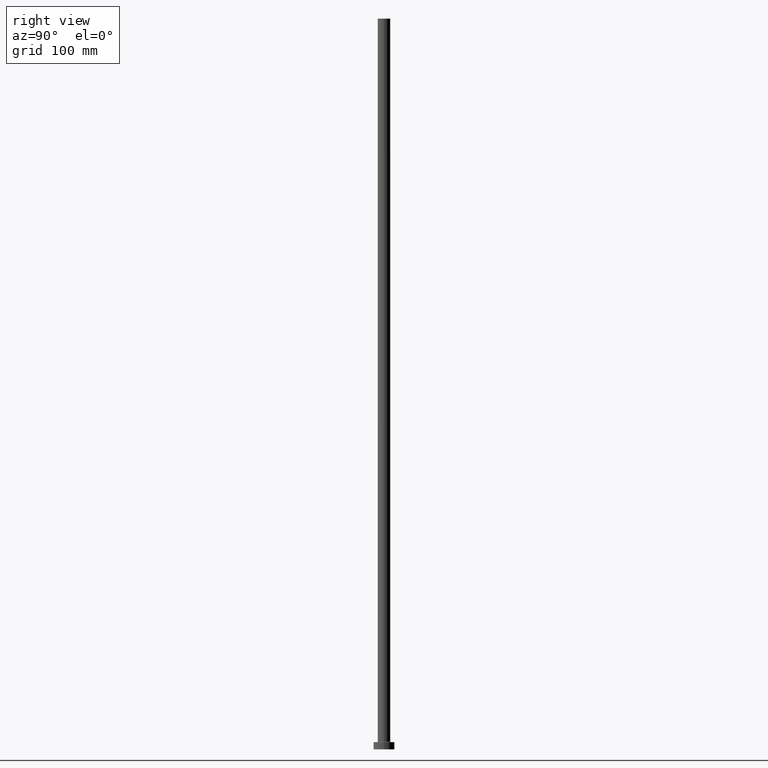
[diagram: clean part render]
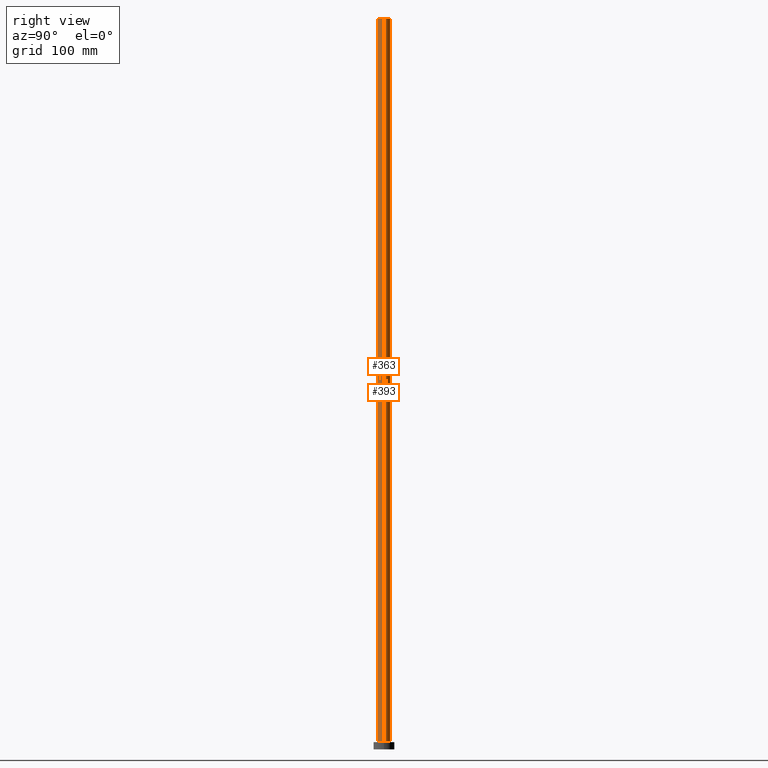
[diagram: same view with one multi-face feature highlighted, each face labeled with its STEP entity id]
A machine part, right view. The highlighted faces form ONE feature: a constant-radius fillet chain: 2 tangent blend faces with common blend radius 6 mm. The faces share edges in the B-rep.
Their STEP definitions:
[1] entity #393 (Cylinder):
#22 = DIRECTION ( 'NONE',  ( -0.000000000000000000, -0.000000000000000000, -1.000000000000000000 ) ) ;
#28 = DIRECTION ( 'NONE',  ( 0.000000000000000000, 0.000000000000000000, 1.000000000000000000 ) ) ;
#30 = EDGE_CURVE ( 'NONE', #407, #35, #395, .T. ) ;
#35 = VERTEX_POINT ( 'NONE', #387 ) ;
#37 = AXIS2_PLACEMENT_3D ( 'NONE', #371, #121, #408 ) ;
#56 = VECTOR ( 'NONE', #71, 1000.000000000000000 ) ;
#68 = ORIENTED_EDGE ( 'NONE', *, *, #440, .T. ) ;
#71 = DIRECTION ( 'NONE',  ( -0.000000000000000000, -0.000000000000000000, -1.000000000000000000 ) ) ;
#89 = ORIENTED_EDGE ( 'NONE', *, *, #191, .F. ) ;
#104 = ORIENTED_EDGE ( 'NONE', *, *, #30, .T. ) ;
#106 = CARTESIAN_POINT ( 'NONE',  ( -6.000000000000000888, 0.000000000000000000, 700.0000000000000000 ) ) ;
#114 = DIRECTION ( 'NONE',  ( 0.000000000000000000, 0.000000000000000000, 1.000000000000000000 ) ) ;
#115 = EDGE_CURVE ( 'NONE', #238, #35, #326, .T. ) ;
#121 = DIRECTION ( 'NONE',  ( -0.000000000000000000, -0.000000000000000000, -1.000000000000000000 ) ) ;
#124 = CARTESIAN_POINT ( 'NONE',  ( 6.000000000000000888, 7.347880794884120722E-16, 7.499999999999951150 ) ) ;
#153 = EDGE_LOOP ( 'NONE', ( #89, #68, #104, #194 ) ) ;
#180 = CIRCLE ( 'NONE', #312, 6.000000000000000888 ) ;
#191 = EDGE_CURVE ( 'NONE', #449, #238, #180, .T. ) ;
#194 = ORIENTED_EDGE ( 'NONE', *, *, #115, .F. ) ;
#199 = DIRECTION ( 'NONE',  ( 1.000000000000000000, 0.000000000000000000, 0.000000000000000000 ) ) ;
#220 = DIRECTION ( 'NONE',  ( 1.000000000000000000, 0.000000000000000000, 0.000000000000000000 ) ) ;
#224 = CYLINDRICAL_SURFACE ( 'NONE', #37, 6.000000000000000888 ) ;
#238 = VERTEX_POINT ( 'NONE', #106 ) ;
#253 = VECTOR ( 'NONE', #22, 1000.000000000000000 ) ;
#263 = FACE_OUTER_BOUND ( 'NONE', #153, .T. ) ;
#272 = CARTESIAN_POINT ( 'NONE',  ( 0.000000000000000000, 0.000000000000000000, 7.499999999999951150 ) ) ;
#285 = AXIS2_PLACEMENT_3D ( 'NONE', #272, #28, #199 ) ;
#309 = LINE ( 'NONE', #316, #253 ) ;
#312 = AXIS2_PLACEMENT_3D ( 'NONE', #437, #114, #220 ) ;
#316 = CARTESIAN_POINT ( 'NONE',  ( 6.000000000000000888, 7.347880794884120722E-16, 700.0000000000000000 ) ) ;
#326 = LINE ( 'NONE', #360, #56 ) ;
#360 = CARTESIAN_POINT ( 'NONE',  ( -6.000000000000000888, 0.000000000000000000, 700.0000000000000000 ) ) ;
#371 = CARTESIAN_POINT ( 'NONE',  ( 0.000000000000000000, 0.000000000000000000, 700.0000000000000000 ) ) ;
#382 = CARTESIAN_POINT ( 'NONE',  ( 6.000000000000000888, 7.347880794884120722E-16, 700.0000000000000000 ) ) ;
#387 = CARTESIAN_POINT ( 'NONE',  ( -6.000000000000000888, 0.000000000000000000, 7.499999999999951150 ) ) ;
#393 = ADVANCED_FACE ( 'NONE', ( #263 ), #224, .T. ) ;
#395 = CIRCLE ( 'NONE', #285, 6.000000000000000888 ) ;
#407 = VERTEX_POINT ( 'NONE', #124 ) ;
#408 = DIRECTION ( 'NONE',  ( -1.000000000000000000, 0.000000000000000000, 0.000000000000000000 ) ) ;
#437 = CARTESIAN_POINT ( 'NONE',  ( 0.000000000000000000, 0.000000000000000000, 700.0000000000000000 ) ) ;
#440 = EDGE_CURVE ( 'NONE', #449, #407, #309, .T. ) ;
#449 = VERTEX_POINT ( 'NONE', #382 ) ;
[2] entity #363 (Cylinder):
#12 = CYLINDRICAL_SURFACE ( 'NONE', #214, 6.000000000000000888 ) ;
#22 = DIRECTION ( 'NONE',  ( -0.000000000000000000, -0.000000000000000000, -1.000000000000000000 ) ) ;
#35 = VERTEX_POINT ( 'NONE', #387 ) ;
#36 = ORIENTED_EDGE ( 'NONE', *, *, #115, .T. ) ;
#56 = VECTOR ( 'NONE', #71, 1000.000000000000000 ) ;
#71 = DIRECTION ( 'NONE',  ( -0.000000000000000000, -0.000000000000000000, -1.000000000000000000 ) ) ;
#75 = EDGE_CURVE ( 'NONE', #238, #449, #325, .T. ) ;
#83 = EDGE_LOOP ( 'NONE', ( #296, #301, #36, #369 ) ) ;
#88 = DIRECTION ( 'NONE',  ( 1.000000000000000000, 0.000000000000000000, 0.000000000000000000 ) ) ;
#106 = CARTESIAN_POINT ( 'NONE',  ( -6.000000000000000888, 0.000000000000000000, 700.0000000000000000 ) ) ;
#108 = DIRECTION ( 'NONE',  ( 0.000000000000000000, 0.000000000000000000, 1.000000000000000000 ) ) ;
#115 = EDGE_CURVE ( 'NONE', #238, #35, #326, .T. ) ;
#123 = AXIS2_PLACEMENT_3D ( 'NONE', #209, #108, #292 ) ;
#124 = CARTESIAN_POINT ( 'NONE',  ( 6.000000000000000888, 7.347880794884120722E-16, 7.499999999999951150 ) ) ;
#148 = FACE_OUTER_BOUND ( 'NONE', #83, .T. ) ;
#155 = CARTESIAN_POINT ( 'NONE',  ( 0.000000000000000000, 0.000000000000000000, 7.499999999999951150 ) ) ;
#209 = CARTESIAN_POINT ( 'NONE',  ( 0.000000000000000000, 0.000000000000000000, 700.0000000000000000 ) ) ;
#214 = AXIS2_PLACEMENT_3D ( 'NONE', #406, #445, #293 ) ;
#238 = VERTEX_POINT ( 'NONE', #106 ) ;
#253 = VECTOR ( 'NONE', #22, 1000.000000000000000 ) ;
#280 = EDGE_CURVE ( 'NONE', #35, #407, #426, .T. ) ;
#292 = DIRECTION ( 'NONE',  ( 1.000000000000000000, 0.000000000000000000, 0.000000000000000000 ) ) ;
#293 = DIRECTION ( 'NONE',  ( -1.000000000000000000, 0.000000000000000000, 0.000000000000000000 ) ) ;
#294 = AXIS2_PLACEMENT_3D ( 'NONE', #155, #448, #88 ) ;
#296 = ORIENTED_EDGE ( 'NONE', *, *, #440, .F. ) ;
#301 = ORIENTED_EDGE ( 'NONE', *, *, #75, .F. ) ;
#309 = LINE ( 'NONE', #316, #253 ) ;
#316 = CARTESIAN_POINT ( 'NONE',  ( 6.000000000000000888, 7.347880794884120722E-16, 700.0000000000000000 ) ) ;
#325 = CIRCLE ( 'NONE', #123, 6.000000000000000888 ) ;
#326 = LINE ( 'NONE', #360, #56 ) ;
#360 = CARTESIAN_POINT ( 'NONE',  ( -6.000000000000000888, 0.000000000000000000, 700.0000000000000000 ) ) ;
#363 = ADVANCED_FACE ( 'NONE', ( #148 ), #12, .T. ) ;
#369 = ORIENTED_EDGE ( 'NONE', *, *, #280, .T. ) ;
#382 = CARTESIAN_POINT ( 'NONE',  ( 6.000000000000000888, 7.347880794884120722E-16, 700.0000000000000000 ) ) ;
#387 = CARTESIAN_POINT ( 'NONE',  ( -6.000000000000000888, 0.000000000000000000, 7.499999999999951150 ) ) ;
#406 = CARTESIAN_POINT ( 'NONE',  ( 0.000000000000000000, 0.000000000000000000, 700.0000000000000000 ) ) ;
#407 = VERTEX_POINT ( 'NONE', #124 ) ;
#426 = CIRCLE ( 'NONE', #294, 6.000000000000000888 ) ;
#440 = EDGE_CURVE ( 'NONE', #449, #407, #309, .T. ) ;
#445 = DIRECTION ( 'NONE',  ( -0.000000000000000000, -0.000000000000000000, -1.000000000000000000 ) ) ;
#448 = DIRECTION ( 'NONE',  ( 0.000000000000000000, 0.000000000000000000, 1.000000000000000000 ) ) ;
#449 = VERTEX_POINT ( 'NONE', #382 ) ;